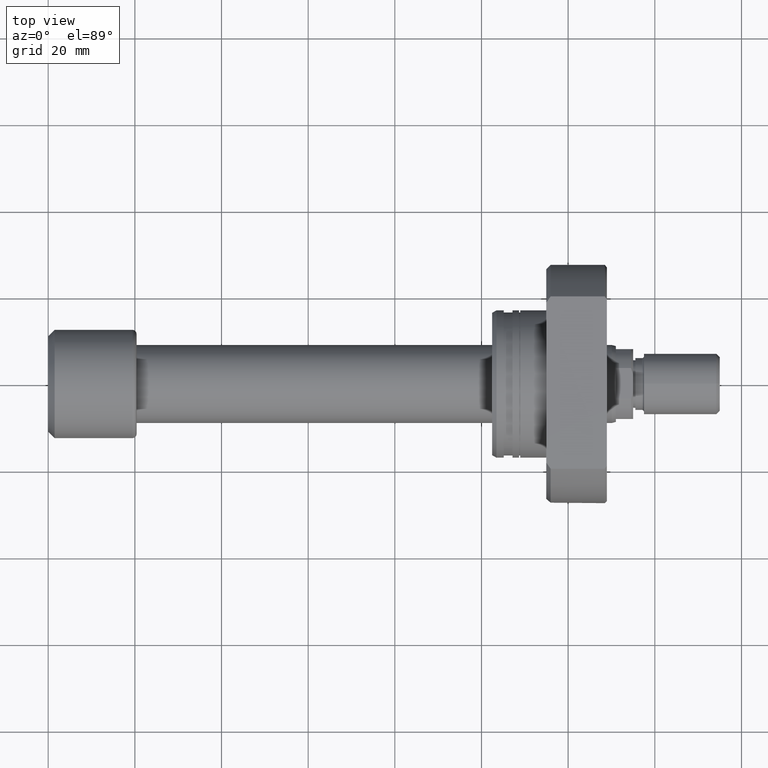
[diagram: clean part render]
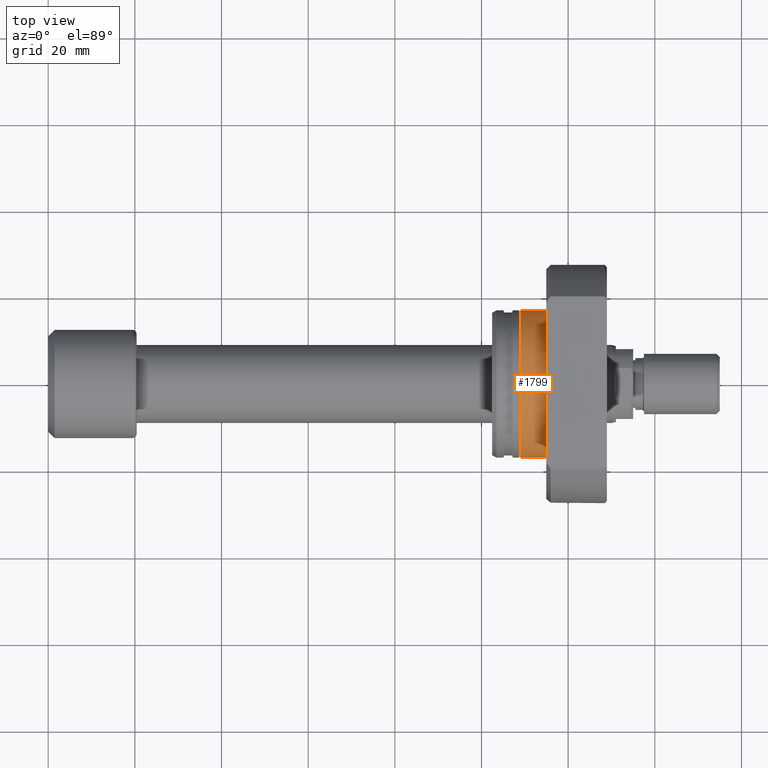
[diagram: same view with one face highlighted and labeled with its STEP entity id]
A machine part, top view. The second image highlights one B-rep face of the part: STEP entity #1799.
In plain terms, the highlighted cylindrical surface (partial cylindrical patch) has radius 17 mm, axis along (1, 0, 0).
Its self-contained STEP definition (entity closure, byte-faithful):
#117 = EDGE_CURVE ( 'NONE', #1264, #906, #2585, .T. ) ;
#256 = DIRECTION ( 'NONE',  ( 1.000000000000000000, 9.242617352055502386E-18, -0.000000000000000000 ) ) ;
#269 = AXIS2_PLACEMENT_3D ( 'NONE', #3536, #1852, #2719 ) ;
#436 = CARTESIAN_POINT ( 'NONE',  ( 12.50000000000000178, 16.99999999999999645, 0.000000000000000000 ) ) ;
#560 = CARTESIAN_POINT ( 'NONE',  ( 12.50000000000000178, 1.155327169006937960E-16, 0.000000000000000000 ) ) ;
#793 = DIRECTION ( 'NONE',  ( 0.000000000000000000, 1.000000000000000000, 0.000000000000000000 ) ) ;
#906 = VERTEX_POINT ( 'NONE', #1803 ) ;
#955 = DIRECTION ( 'NONE',  ( 1.000000000000000000, 9.242617352055502386E-18, -0.000000000000000000 ) ) ;
#1156 = VECTOR ( 'NONE', #2108, 1000.000000000000000 ) ;
#1264 = VERTEX_POINT ( 'NONE', #1731 ) ;
#1339 = CYLINDRICAL_SURFACE ( 'NONE', #269, 16.99999999999999645 ) ;
#1421 = CARTESIAN_POINT ( 'NONE',  ( 12.50000000000000178, -16.99999999999999645, 2.081899558550499885E-15 ) ) ;
#1447 = ORIENTED_EDGE ( 'NONE', *, *, #1883, .F. ) ;
#1513 = ORIENTED_EDGE ( 'NONE', *, *, #1903, .F. ) ;
#1719 = EDGE_CURVE ( 'NONE', #906, #1898, #3616, .T. ) ;
#1731 = CARTESIAN_POINT ( 'NONE',  ( 6.499999999999783284, 16.99999999999999645, 0.000000000000000000 ) ) ;
#1799 = ADVANCED_FACE ( 'NONE', ( #3577 ), #1339, .T. ) ;
#1803 = CARTESIAN_POINT ( 'NONE',  ( 6.499999999999783284, -16.99999999999999645, 2.081899558550499885E-15 ) ) ;
#1852 = DIRECTION ( 'NONE',  ( 1.000000000000000000, 9.242617352055502386E-18, -0.000000000000000000 ) ) ;
#1867 = AXIS2_PLACEMENT_3D ( 'NONE', #560, #2486, #793 ) ;
#1883 = EDGE_CURVE ( 'NONE', #1264, #2281, #2216, .T. ) ;
#1898 = VERTEX_POINT ( 'NONE', #1421 ) ;
#1903 = EDGE_CURVE ( 'NONE', #2281, #1898, #3306, .T. ) ;
#2108 = DIRECTION ( 'NONE',  ( 1.000000000000000000, 9.242617352055502386E-18, -0.000000000000000000 ) ) ;
#2154 = AXIS2_PLACEMENT_3D ( 'NONE', #2419, #955, #3268 ) ;
#2216 = LINE ( 'NONE', #3635, #2641 ) ;
#2281 = VERTEX_POINT ( 'NONE', #436 ) ;
#2375 = EDGE_LOOP ( 'NONE', ( #2402, #3188, #1513, #1447 ) ) ;
#2402 = ORIENTED_EDGE ( 'NONE', *, *, #117, .T. ) ;
#2419 = CARTESIAN_POINT ( 'NONE',  ( 6.499999999999783284, 6.007701278835876331E-17, 0.000000000000000000 ) ) ;
#2486 = DIRECTION ( 'NONE',  ( 1.000000000000000000, 9.242617352055502386E-18, -0.000000000000000000 ) ) ;
#2585 = CIRCLE ( 'NONE', #2154, 16.99999999999999645 ) ;
#2641 = VECTOR ( 'NONE', #256, 1000.000000000000000 ) ;
#2719 = DIRECTION ( 'NONE',  ( 0.000000000000000000, 1.000000000000000000, 0.000000000000000000 ) ) ;
#3034 = CARTESIAN_POINT ( 'NONE',  ( 26.50000000000000711, -16.99999999999999645, 2.081899558550499885E-15 ) ) ;
#3188 = ORIENTED_EDGE ( 'NONE', *, *, #1719, .T. ) ;
#3268 = DIRECTION ( 'NONE',  ( 0.000000000000000000, 1.000000000000000000, 0.000000000000000000 ) ) ;
#3306 = CIRCLE ( 'NONE', #1867, 16.99999999999999645 ) ;
#3536 = CARTESIAN_POINT ( 'NONE',  ( 26.50000000000000711, 2.449293598294708880E-16, 0.000000000000000000 ) ) ;
#3577 = FACE_OUTER_BOUND ( 'NONE', #2375, .T. ) ;
#3616 = LINE ( 'NONE', #3034, #1156 ) ;
#3635 = CARTESIAN_POINT ( 'NONE',  ( 26.50000000000000711, 16.99999999999999645, 0.000000000000000000 ) ) ;